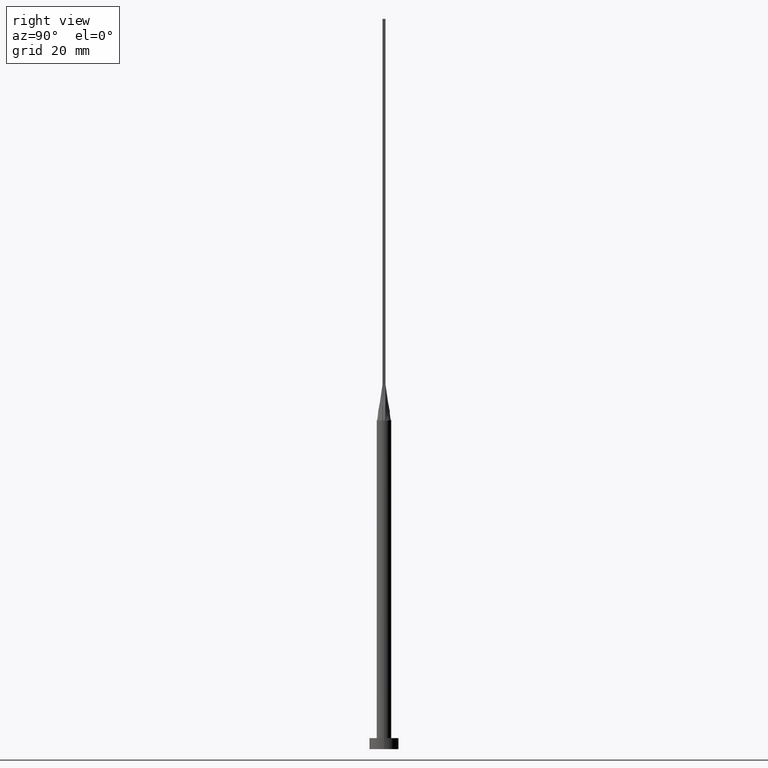
[diagram: clean part render]
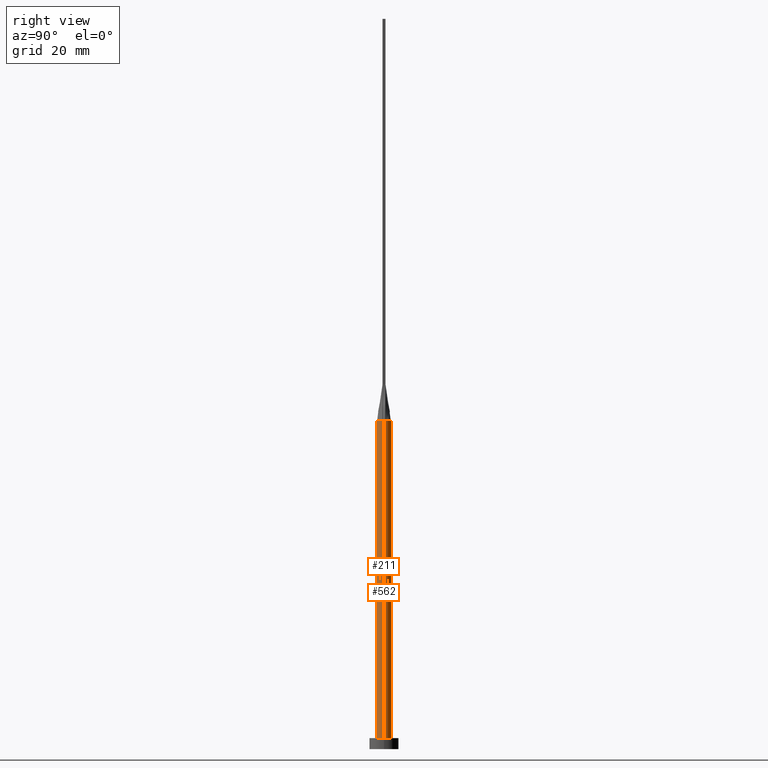
[diagram: same view with one multi-face feature highlighted, each face labeled with its STEP entity id]
A machine part, right view. The highlighted faces form ONE feature: a constant-radius fillet chain: 2 tangent blend faces with common blend radius 2 mm. The faces share edges in the B-rep.
Their STEP definitions:
[1] entity #562 (Cylinder):
#3 = CARTESIAN_POINT ( 'NONE',  ( -0.5307032259479420588, 1.945168061822314609, 90.00000000000000000 ) ) ;
#8 = CARTESIAN_POINT ( 'NONE',  ( -1.002818635501954381, 1.749193953526918532, 90.00000000000001421 ) ) ;
#14 = ORIENTED_EDGE ( 'NONE', *, *, #127, .F. ) ;
#17 = CARTESIAN_POINT ( 'NONE',  ( 1.999683952654101260, 4.637163118916083254E-16, 90.00000000000000000 ) ) ;
#19 = CARTESIAN_POINT ( 'NONE',  ( -1.999683952654101704, -4.787247324473225831E-16, 90.00000000000000000 ) ) ;
#48 = CARTESIAN_POINT ( 'NONE',  ( -1.669156890509896796, 1.119033439449084399, 89.99999999999998579 ) ) ;
#52 = CARTESIAN_POINT ( 'NONE',  ( 0.2657394870669761988, 1.999999999999999556, 90.00000000000000000 ) ) ;
#55 = DIRECTION ( 'NONE',  ( 0.000000000000000000, 0.000000000000000000, 1.000000000000000000 ) ) ;
#67 = ORIENTED_EDGE ( 'NONE', *, *, #379, .T. ) ;
#74 = ORIENTED_EDGE ( 'NONE', *, *, #326, .T. ) ;
#83 = DIRECTION ( 'NONE',  ( -1.000000000000000000, 0.000000000000000000, 0.000000000000000000 ) ) ;
#84 = CARTESIAN_POINT ( 'NONE',  ( 1.854458107241759190, 0.7741483657718509770, 90.00000000000000000 ) ) ;
#90 = CARTESIAN_POINT ( 'NONE',  ( 1.542259513637948443, 1.293837904363074998, 90.00000000000000000 ) ) ;
#93 = CARTESIAN_POINT ( 'NONE',  ( 0.5307032259479425029, 1.945168061822314165, 90.00000000000001421 ) ) ;
#107 = CARTESIAN_POINT ( 'NONE',  ( -2.000000000000000000, 0.000000000000000000, 3.000000000000000000 ) ) ;
#115 = CARTESIAN_POINT ( 'NONE',  ( -1.949896596863728293, 0.4456908869437610776, 90.00000000000000000 ) ) ;
#116 = CIRCLE ( 'NONE', #219, 2.000000000000000000 ) ;
#127 = EDGE_CURVE ( 'NONE', #255, #448, #523, .T. ) ;
#136 = CARTESIAN_POINT ( 'NONE',  ( 1.209404336647714073, 1.609323485403446830, 90.00000000000001421 ) ) ;
#145 = DIRECTION ( 'NONE',  ( 0.000000000000000000, 0.000000000000000000, 1.000000000000000000 ) ) ;
#150 = VERTEX_POINT ( 'NONE', #184 ) ;
#152 = DIRECTION ( 'NONE',  ( 0.000000000000000000, 0.000000000000000000, 1.000000000000000000 ) ) ;
#156 = DIRECTION ( 'NONE',  ( -0.000000000000000000, -0.000000000000000000, -1.000000000000000000 ) ) ;
#178 = CARTESIAN_POINT ( 'NONE',  ( 0.000000000000000000, 0.000000000000000000, 90.00000000000000000 ) ) ;
#184 = CARTESIAN_POINT ( 'NONE',  ( 2.000000000000000000, 2.449293598294706414E-16, 3.000000000000000000 ) ) ;
#185 = CARTESIAN_POINT ( 'NONE',  ( -1.949896596863728293, 0.4456908869437610776, 90.00000000000000000 ) ) ;
#219 = AXIS2_PLACEMENT_3D ( 'NONE', #318, #152, #465 ) ;
#226 = VECTOR ( 'NONE', #156, 1000.000000000000000 ) ;
#227 = CARTESIAN_POINT ( 'NONE',  ( -1.913513237607142647, 0.6040411209768712375, 90.00000000000000000 ) ) ;
#232 = CARTESIAN_POINT ( 'NONE',  ( -1.209404336647713851, 1.609323485403446830, 90.00000000000000000 ) ) ;
#245 = AXIS2_PLACEMENT_3D ( 'NONE', #178, #537, #83 ) ;
#255 = VERTEX_POINT ( 'NONE', #282 ) ;
#258 = VERTEX_POINT ( 'NONE', #19 ) ;
#272 = CIRCLE ( 'NONE', #446, 2.000000000000000000 ) ;
#274 = CARTESIAN_POINT ( 'NONE',  ( -1.542259513637947999, 1.293837904363075442, 90.00000000000001421 ) ) ;
#278 = EDGE_LOOP ( 'NONE', ( #501, #74, #67, #301, #280, #14 ) ) ;
#280 = ORIENTED_EDGE ( 'NONE', *, *, #330, .F. ) ;
#281 = VERTEX_POINT ( 'NONE', #17 ) ;
#282 = CARTESIAN_POINT ( 'NONE',  ( 1.949877516600953875, 0.4456865912299994847, 90.00000000000000000 ) ) ;
#301 = ORIENTED_EDGE ( 'NONE', *, *, #360, .F. ) ;
#311 = CYLINDRICAL_SURFACE ( 'NONE', #245, 2.000000000000000000 ) ;
#312 = CARTESIAN_POINT ( 'NONE',  ( 1.949877516600953875, 0.4456865912299994847, 90.00000000000000000 ) ) ;
#318 = CARTESIAN_POINT ( 'NONE',  ( 0.000000000000000000, 0.000000000000000000, 90.00000000000000000 ) ) ;
#320 = DIRECTION ( 'NONE',  ( 1.000000000000000000, 0.000000000000000000, 0.000000000000000000 ) ) ;
#324 = DIRECTION ( 'NONE',  ( 1.000000000000000000, 0.000000000000000000, 0.000000000000000000 ) ) ;
#326 = EDGE_CURVE ( 'NONE', #281, #150, #422, .T. ) ;
#330 = EDGE_CURVE ( 'NONE', #448, #258, #116, .T. ) ;
#348 = CARTESIAN_POINT ( 'NONE',  ( 1.002818635501954603, 1.749193953526918088, 90.00000000000000000 ) ) ;
#360 = EDGE_CURVE ( 'NONE', #258, #392, #512, .T. ) ;
#379 = EDGE_CURVE ( 'NONE', #150, #392, #475, .T. ) ;
#392 = VERTEX_POINT ( 'NONE', #107 ) ;
#402 = EDGE_CURVE ( 'NONE', #281, #255, #272, .T. ) ;
#415 = CARTESIAN_POINT ( 'NONE',  ( -0.2657394870669756437, 1.999999999999999556, 90.00000000000001421 ) ) ;
#420 = CARTESIAN_POINT ( 'NONE',  ( 2.000000000000000000, 2.449293598294706414E-16, 90.00000000000000000 ) ) ;
#422 = LINE ( 'NONE', #420, #226 ) ;
#424 = CARTESIAN_POINT ( 'NONE',  ( -2.000000000000000000, 0.000000000000000000, 90.00000000000000000 ) ) ;
#442 = CARTESIAN_POINT ( 'NONE',  ( 1.913513237607142647, 0.6040411209768705714, 90.00000000000001421 ) ) ;
#444 = FACE_OUTER_BOUND ( 'NONE', #278, .T. ) ;
#446 = AXIS2_PLACEMENT_3D ( 'NONE', #555, #145, #320 ) ;
#448 = VERTEX_POINT ( 'NONE', #115 ) ;
#462 = DIRECTION ( 'NONE',  ( -0.000000000000000000, -0.000000000000000000, -1.000000000000000000 ) ) ;
#465 = DIRECTION ( 'NONE',  ( 1.000000000000000000, 0.000000000000000000, 0.000000000000000000 ) ) ;
#475 = CIRCLE ( 'NONE', #526, 2.000000000000000000 ) ;
#495 = CARTESIAN_POINT ( 'NONE',  ( -1.854458107241758746, 0.7741483657718513101, 89.99999999999998579 ) ) ;
#501 = ORIENTED_EDGE ( 'NONE', *, *, #402, .F. ) ;
#512 = LINE ( 'NONE', #424, #525 ) ;
#523 = B_SPLINE_CURVE_WITH_KNOTS ( 'NONE', 3,
 ( #312, #442, #84, #544, #90, #136, #348, #93, #52, #415, #3, #8, #232, #274, #48, #495, #227, #185 ),
 .UNSPECIFIED., .F., .F.,
 ( 4, 2, 2, 2, 2, 2, 2, 2, 4 ),
 ( 0.000000000000000000, 0.1250000000000000000, 0.2500000000000000000, 0.3750000000000000000, 0.5000000000000000000, 0.6250000000000000000, 0.7500000000000000000, 0.8750000000000000000, 1.000000000000000000 ),
 .UNSPECIFIED. ) ;
#525 = VECTOR ( 'NONE', #462, 1000.000000000000000 ) ;
#526 = AXIS2_PLACEMENT_3D ( 'NONE', #559, #55, #324 ) ;
#537 = DIRECTION ( 'NONE',  ( -0.000000000000000000, -0.000000000000000000, -1.000000000000000000 ) ) ;
#544 = CARTESIAN_POINT ( 'NONE',  ( 1.669156890509896352, 1.119033439449084177, 89.99999999999997158 ) ) ;
#555 = CARTESIAN_POINT ( 'NONE',  ( 0.000000000000000000, 0.000000000000000000, 90.00000000000000000 ) ) ;
#559 = CARTESIAN_POINT ( 'NONE',  ( 0.000000000000000000, 0.000000000000000000, 3.000000000000000000 ) ) ;
#562 = ADVANCED_FACE ( 'NONE', ( #444 ), #311, .T. ) ;
[2] entity #211 (Cylinder):
#11 = DIRECTION ( 'NONE',  ( 1.000000000000000000, 0.000000000000000000, 0.000000000000000000 ) ) ;
#12 = VERTEX_POINT ( 'NONE', #497 ) ;
#17 = CARTESIAN_POINT ( 'NONE',  ( 1.999683952654101260, 4.637163118916083254E-16, 90.00000000000000000 ) ) ;
#19 = CARTESIAN_POINT ( 'NONE',  ( -1.999683952654101704, -4.787247324473225831E-16, 90.00000000000000000 ) ) ;
#43 = CIRCLE ( 'NONE', #429, 2.000000000000000000 ) ;
#57 = DIRECTION ( 'NONE',  ( 0.000000000000000000, 0.000000000000000000, 1.000000000000000000 ) ) ;
#59 = EDGE_CURVE ( 'NONE', #241, #281, #43, .T. ) ;
#97 = DIRECTION ( 'NONE',  ( -0.000000000000000000, -0.000000000000000000, -1.000000000000000000 ) ) ;
#107 = CARTESIAN_POINT ( 'NONE',  ( -2.000000000000000000, 0.000000000000000000, 3.000000000000000000 ) ) ;
#131 = DIRECTION ( 'NONE',  ( 0.000000000000000000, 0.000000000000000000, 1.000000000000000000 ) ) ;
#137 = AXIS2_PLACEMENT_3D ( 'NONE', #265, #97, #451 ) ;
#139 = CARTESIAN_POINT ( 'NONE',  ( 0.000000000000000000, 0.000000000000000000, 90.00000000000000000 ) ) ;
#141 = CARTESIAN_POINT ( 'NONE',  ( 1.949907982895221048, -0.4456935569447296186, 90.00000000000000000 ) ) ;
#150 = VERTEX_POINT ( 'NONE', #184 ) ;
#156 = DIRECTION ( 'NONE',  ( -0.000000000000000000, -0.000000000000000000, -1.000000000000000000 ) ) ;
#182 = EDGE_CURVE ( 'NONE', #12, #241, #504, .T. ) ;
#184 = CARTESIAN_POINT ( 'NONE',  ( 2.000000000000000000, 2.449293598294706414E-16, 3.000000000000000000 ) ) ;
#197 = AXIS2_PLACEMENT_3D ( 'NONE', #238, #416, #11 ) ;
#200 = EDGE_CURVE ( 'NONE', #258, #12, #289, .T. ) ;
#211 = ADVANCED_FACE ( 'NONE', ( #309 ), #317, .T. ) ;
#226 = VECTOR ( 'NONE', #156, 1000.000000000000000 ) ;
#238 = CARTESIAN_POINT ( 'NONE',  ( 0.000000000000000000, 0.000000000000000000, 3.000000000000000000 ) ) ;
#241 = VERTEX_POINT ( 'NONE', #141 ) ;
#258 = VERTEX_POINT ( 'NONE', #19 ) ;
#265 = CARTESIAN_POINT ( 'NONE',  ( 0.000000000000000000, 0.000000000000000000, 90.00000000000000000 ) ) ;
#275 = DIRECTION ( 'NONE',  ( 1.000000000000000000, 0.000000000000000000, 0.000000000000000000 ) ) ;
#281 = VERTEX_POINT ( 'NONE', #17 ) ;
#289 = CIRCLE ( 'NONE', #339, 2.000000000000000000 ) ;
#309 = FACE_OUTER_BOUND ( 'NONE', #542, .T. ) ;
#317 = CYLINDRICAL_SURFACE ( 'NONE', #137, 2.000000000000000000 ) ;
#319 = ORIENTED_EDGE ( 'NONE', *, *, #200, .F. ) ;
#326 = EDGE_CURVE ( 'NONE', #281, #150, #422, .T. ) ;
#339 = AXIS2_PLACEMENT_3D ( 'NONE', #139, #131, #275 ) ;
#340 = CIRCLE ( 'NONE', #197, 2.000000000000000000 ) ;
#351 = DIRECTION ( 'NONE',  ( 0.000000000000000000, 0.000000000000000000, 1.000000000000000000 ) ) ;
#356 = ORIENTED_EDGE ( 'NONE', *, *, #326, .F. ) ;
#360 = EDGE_CURVE ( 'NONE', #258, #392, #512, .T. ) ;
#373 = ORIENTED_EDGE ( 'NONE', *, *, #394, .T. ) ;
#392 = VERTEX_POINT ( 'NONE', #107 ) ;
#394 = EDGE_CURVE ( 'NONE', #392, #150, #340, .T. ) ;
#416 = DIRECTION ( 'NONE',  ( 0.000000000000000000, 0.000000000000000000, 1.000000000000000000 ) ) ;
#417 = ORIENTED_EDGE ( 'NONE', *, *, #59, .F. ) ;
#420 = CARTESIAN_POINT ( 'NONE',  ( 2.000000000000000000, 2.449293598294706414E-16, 90.00000000000000000 ) ) ;
#422 = LINE ( 'NONE', #420, #226 ) ;
#424 = CARTESIAN_POINT ( 'NONE',  ( -2.000000000000000000, 0.000000000000000000, 90.00000000000000000 ) ) ;
#429 = AXIS2_PLACEMENT_3D ( 'NONE', #460, #57, #496 ) ;
#451 = DIRECTION ( 'NONE',  ( -1.000000000000000000, 0.000000000000000000, 0.000000000000000000 ) ) ;
#460 = CARTESIAN_POINT ( 'NONE',  ( 0.000000000000000000, 0.000000000000000000, 90.00000000000000000 ) ) ;
#462 = DIRECTION ( 'NONE',  ( -0.000000000000000000, -0.000000000000000000, -1.000000000000000000 ) ) ;
#494 = CARTESIAN_POINT ( 'NONE',  ( 0.000000000000000000, 0.000000000000000000, 90.00000000000000000 ) ) ;
#496 = DIRECTION ( 'NONE',  ( 1.000000000000000000, -9.769962616701377556E-15, 0.000000000000000000 ) ) ;
#497 = CARTESIAN_POINT ( 'NONE',  ( -1.949888833174281633, -0.4456892479726881628, 90.00000000000000000 ) ) ;
#503 = AXIS2_PLACEMENT_3D ( 'NONE', #494, #351, #536 ) ;
#504 = CIRCLE ( 'NONE', #503, 2.000000000000000000 ) ;
#512 = LINE ( 'NONE', #424, #525 ) ;
#525 = VECTOR ( 'NONE', #462, 1000.000000000000000 ) ;
#536 = DIRECTION ( 'NONE',  ( 1.000000000000000000, 0.000000000000000000, 0.000000000000000000 ) ) ;
#542 = EDGE_LOOP ( 'NONE', ( #356, #417, #546, #319, #557, #373 ) ) ;
#546 = ORIENTED_EDGE ( 'NONE', *, *, #182, .F. ) ;
#557 = ORIENTED_EDGE ( 'NONE', *, *, #360, .T. ) ;